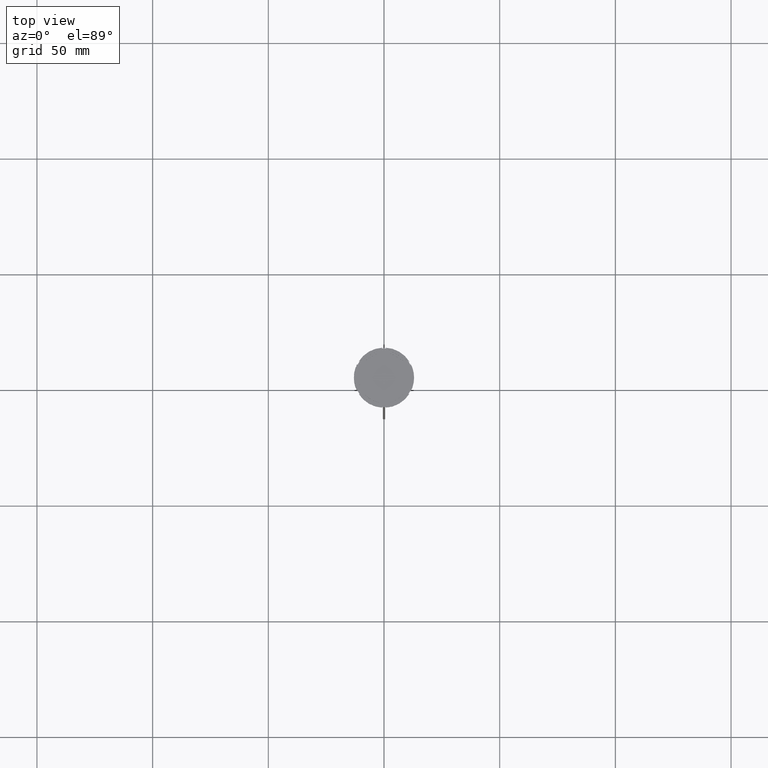
[diagram: clean part render]
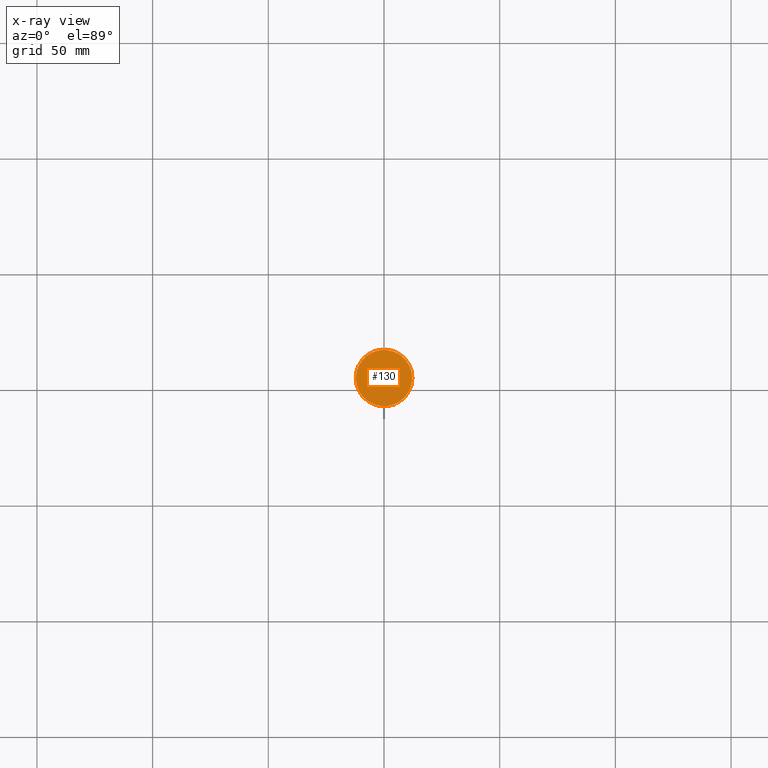
[diagram: x-ray — body ghosted, one internal face saturated and labeled with its STEP entity id]
A machine part, top view, then the same camera in x-ray: the body is ghosted and one INTERNAL B-rep face — a face not visible from any outside direction — is saturated and labeled: STEP entity #130.
In plain terms, the highlighted planar face has unit normal (0, 0, -1).
Its self-contained STEP definition (entity closure, byte-faithful):
#60 = EDGE_CURVE ( 'NONE', #969, #2317, #652, .T. ) ;
#130 = ADVANCED_FACE ( 'NONE', ( #904 ), #1125, .F. ) ;
#169 = CARTESIAN_POINT ( 'NONE',  ( 0.000000000000000000, 0.000000000000000000, -12.00000000000000000 ) ) ;
#237 = AXIS2_PLACEMENT_3D ( 'NONE', #1993, #669, #247 ) ;
#247 = DIRECTION ( 'NONE',  ( -1.000000000000000000, 0.000000000000000000, -0.000000000000000000 ) ) ;
#652 = CIRCLE ( 'NONE', #2643, 12.20000000000000639 ) ;
#654 = ORIENTED_EDGE ( 'NONE', *, *, #2473, .T. ) ;
#669 = DIRECTION ( 'NONE',  ( 0.000000000000000000, 0.000000000000000000, -1.000000000000000000 ) ) ;
#816 = ORIENTED_EDGE ( 'NONE', *, *, #60, .T. ) ;
#904 = FACE_OUTER_BOUND ( 'NONE', #2882, .T. ) ;
#969 = VERTEX_POINT ( 'NONE', #2189 ) ;
#1114 = CIRCLE ( 'NONE', #2872, 12.20000000000000639 ) ;
#1125 = PLANE ( 'NONE',  #237 ) ;
#1524 = DIRECTION ( 'NONE',  ( -1.000000000000000000, 0.000000000000000000, 0.000000000000000000 ) ) ;
#1692 = DIRECTION ( 'NONE',  ( -0.000000000000000000, -0.000000000000000000, 1.000000000000000000 ) ) ;
#1993 = CARTESIAN_POINT ( 'NONE',  ( 0.000000000000000000, 0.000000000000000000, -12.00000000000000000 ) ) ;
#2151 = CARTESIAN_POINT ( 'NONE',  ( -12.20000000000000639, 0.000000000000000000, -12.00000000000000000 ) ) ;
#2189 = CARTESIAN_POINT ( 'NONE',  ( 12.20000000000000639, 1.512438796946981880E-15, -12.00000000000000000 ) ) ;
#2317 = VERTEX_POINT ( 'NONE', #2151 ) ;
#2418 = CARTESIAN_POINT ( 'NONE',  ( 0.000000000000000000, 0.000000000000000000, -12.00000000000000000 ) ) ;
#2473 = EDGE_CURVE ( 'NONE', #2317, #969, #1114, .T. ) ;
#2628 = DIRECTION ( 'NONE',  ( -1.000000000000000000, 0.000000000000000000, 0.000000000000000000 ) ) ;
#2643 = AXIS2_PLACEMENT_3D ( 'NONE', #169, #1692, #1524 ) ;
#2674 = DIRECTION ( 'NONE',  ( -0.000000000000000000, -0.000000000000000000, 1.000000000000000000 ) ) ;
#2872 = AXIS2_PLACEMENT_3D ( 'NONE', #2418, #2674, #2628 ) ;
#2882 = EDGE_LOOP ( 'NONE', ( #654, #816 ) ) ;